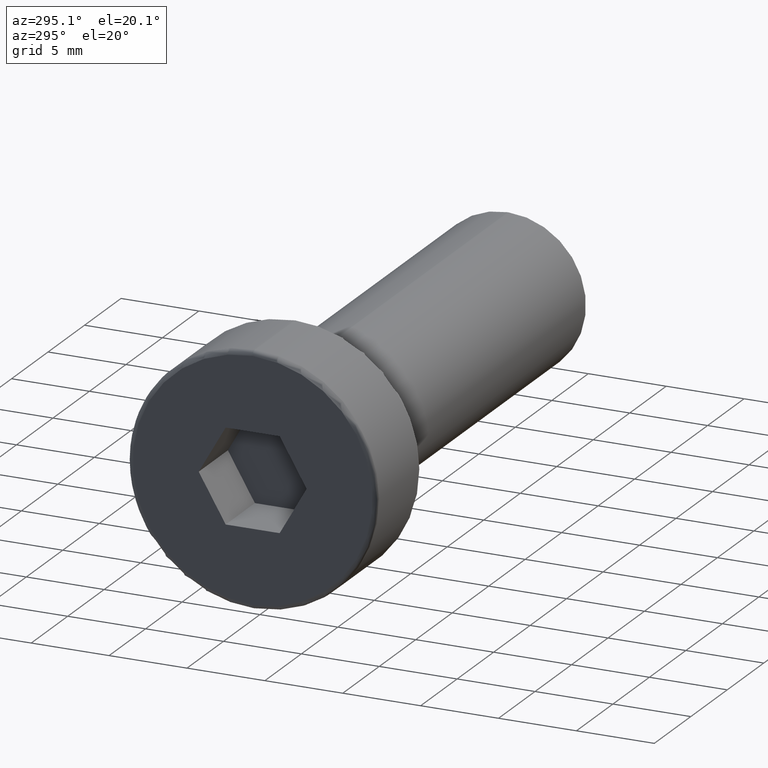
[diagram: clean part render]
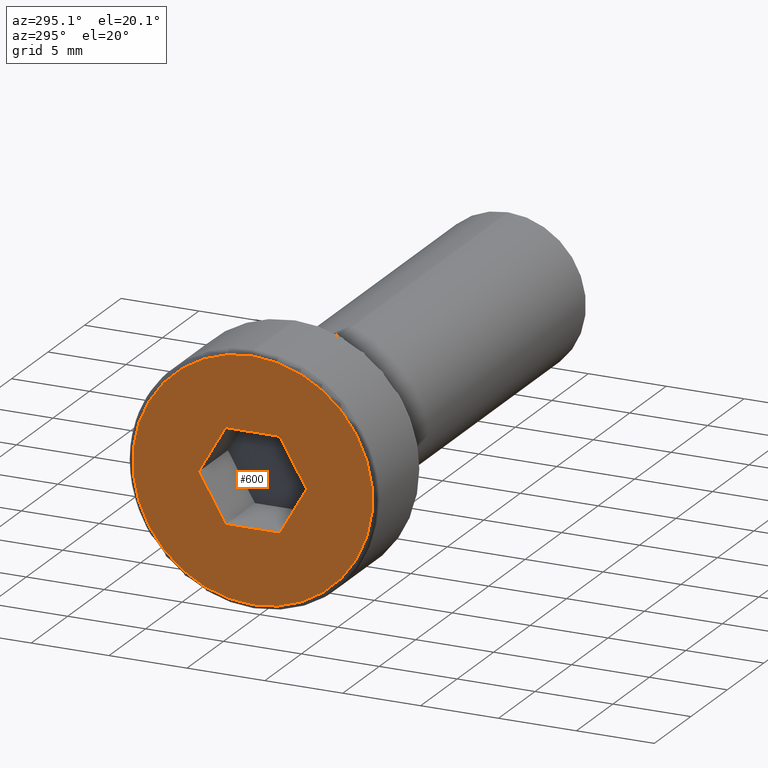
[diagram: same view with one face highlighted and labeled with its STEP entity id]
A machine part, auxiliary view. The second image highlights one B-rep face of the part: STEP entity #600.
In plain terms, the highlighted planar face has unit normal (1, 0, 0).
Its self-contained STEP definition (entity closure, byte-faithful):
#4 = CARTESIAN_POINT ( 'NONE',  ( -6.000000000000000000, 1.732050807568654900, 2.999999999999611400 ) ) ;
#10 = CARTESIAN_POINT ( 'NONE',  ( -6.000000000000000000, -1.732050807568653800, 2.999999999999613200 ) ) ;
#12 = DIRECTION ( 'NONE',  ( 0.0000000000000000000, 0.0000000000000000000, -1.000000000000000000 ) ) ;
#20 = ORIENTED_EDGE ( 'NONE', *, *, #692, .F. ) ;
#45 = EDGE_CURVE ( 'NONE', #332, #381, #476, .T. ) ;
#51 = DIRECTION ( 'NONE',  ( -0.0000000000000000000, -0.5000000000000008900, -0.8660254037844381500 ) ) ;
#61 = ORIENTED_EDGE ( 'NONE', *, *, #269, .F. ) ;
#62 = CARTESIAN_POINT ( 'NONE',  ( -6.000000000000000000, -3.464101615137309900, 0.0000000000000000000 ) ) ;
#75 = VERTEX_POINT ( 'NONE', #304 ) ;
#111 = VERTEX_POINT ( 'NONE', #564 ) ;
#142 = ORIENTED_EDGE ( 'NONE', *, *, #437, .T. ) ;
#151 = EDGE_LOOP ( 'NONE', ( #591, #142 ) ) ;
#157 = VECTOR ( 'NONE', #188, 1000.000000000000000 ) ;
#164 = FACE_BOUND ( 'NONE', #611, .T. ) ;
#188 = DIRECTION ( 'NONE',  ( -0.0000000000000000000, -1.000000000000000000, -0.0000000000000000000 ) ) ;
#201 = CARTESIAN_POINT ( 'NONE',  ( -6.000000000000000000, 0.0000000000000000000, 0.0000000000000000000 ) ) ;
#218 = PLANE ( 'NONE',  #382 ) ;
#222 = VERTEX_POINT ( 'NONE', #484 ) ;
#226 = CARTESIAN_POINT ( 'NONE',  ( -6.000000000000000000, -3.464101615137309900, 0.0000000000000000000 ) ) ;
#243 = CARTESIAN_POINT ( 'NONE',  ( -6.000000000000000000, -1.732050807568655800, -2.999999999999614100 ) ) ;
#263 = DIRECTION ( 'NONE',  ( 0.0000000000000000000, 0.0000000000000000000, -1.000000000000000000 ) ) ;
#264 = CIRCLE ( 'NONE', #399, 7.700000000000000200 ) ;
#269 = EDGE_CURVE ( 'NONE', #339, #412, #674, .T. ) ;
#283 = EDGE_CURVE ( 'NONE', #381, #75, #657, .T. ) ;
#287 = DIRECTION ( 'NONE',  ( -0.0000000000000000000, -0.4999999999999999400, 0.8660254037844387100 ) ) ;
#304 = CARTESIAN_POINT ( 'NONE',  ( -6.000000000000000000, -1.732050807568655800, -2.999999999999614100 ) ) ;
#314 = ORIENTED_EDGE ( 'NONE', *, *, #45, .F. ) ;
#316 = AXIS2_PLACEMENT_3D ( 'NONE', #201, #644, #263 ) ;
#317 = CARTESIAN_POINT ( 'NONE',  ( -6.000000000000000000, 1.732050807568653600, -2.999999999999614100 ) ) ;
#332 = VERTEX_POINT ( 'NONE', #630 ) ;
#339 = VERTEX_POINT ( 'NONE', #62 ) ;
#345 = EDGE_CURVE ( 'NONE', #412, #778, #782, .T. ) ;
#352 = DIRECTION ( 'NONE',  ( -0.0000000000000000000, 0.5000000000000005600, -0.8660254037844382600 ) ) ;
#381 = VERTEX_POINT ( 'NONE', #317 ) ;
#382 = AXIS2_PLACEMENT_3D ( 'NONE', #390, #780, #401 ) ;
#383 = DIRECTION ( 'NONE',  ( -1.000000000000000000, -0.0000000000000000000, -0.0000000000000000000 ) ) ;
#390 = CARTESIAN_POINT ( 'NONE',  ( -6.000000000000000000, 0.0000000000000000000, 0.0000000000000000000 ) ) ;
#399 = AXIS2_PLACEMENT_3D ( 'NONE', #763, #383, #12 ) ;
#401 = DIRECTION ( 'NONE',  ( 0.0000000000000000000, 0.0000000000000000000, -1.000000000000000000 ) ) ;
#412 = VERTEX_POINT ( 'NONE', #10 ) ;
#417 = CARTESIAN_POINT ( 'NONE',  ( -6.000000000000000000, 3.464101615137311200, -1.734723475976807100E-015 ) ) ;
#433 = EDGE_CURVE ( 'NONE', #111, #222, #577, .T. ) ;
#437 = EDGE_CURVE ( 'NONE', #222, #111, #264, .T. ) ;
#444 = DIRECTION ( 'NONE',  ( -0.0000000000000000000, 1.000000000000000000, -5.007715329124508700E-016 ) ) ;
#469 = LINE ( 'NONE', #417, #785 ) ;
#476 = LINE ( 'NONE', #490, #791 ) ;
#481 = ORIENTED_EDGE ( 'NONE', *, *, #283, .F. ) ;
#484 = CARTESIAN_POINT ( 'NONE',  ( -6.000000000000000000, 9.613477373306721400E-016, 7.700000000000000200 ) ) ;
#490 = CARTESIAN_POINT ( 'NONE',  ( -6.000000000000000000, 1.732050807568653600, -2.999999999999614100 ) ) ;
#492 = DIRECTION ( 'NONE',  ( -0.0000000000000000000, 0.5000000000000004400, 0.8660254037844383700 ) ) ;
#495 = FACE_OUTER_BOUND ( 'NONE', #151, .T. ) ;
#508 = VECTOR ( 'NONE', #492, 1000.000000000000000 ) ;
#564 = CARTESIAN_POINT ( 'NONE',  ( -6.000000000000000000, 0.0000000000000000000, -7.700000000000000200 ) ) ;
#577 = CIRCLE ( 'NONE', #316, 7.700000000000000200 ) ;
#591 = ORIENTED_EDGE ( 'NONE', *, *, #433, .T. ) ;
#600 = ADVANCED_FACE ( 'NONE', ( #164, #495 ), #218, .F. ) ;
#611 = EDGE_LOOP ( 'NONE', ( #61, #20, #481, #314, #636, #716 ) ) ;
#615 = CARTESIAN_POINT ( 'NONE',  ( -6.000000000000000000, 1.732050807568654900, 2.999999999999611400 ) ) ;
#616 = CARTESIAN_POINT ( 'NONE',  ( -6.000000000000000000, -1.732050807568653800, 2.999999999999613200 ) ) ;
#617 = VECTOR ( 'NONE', #287, 999.9999999999998900 ) ;
#630 = CARTESIAN_POINT ( 'NONE',  ( -6.000000000000000000, 3.464101615137311200, -1.734723475976807100E-015 ) ) ;
#636 = ORIENTED_EDGE ( 'NONE', *, *, #749, .F. ) ;
#641 = VECTOR ( 'NONE', #444, 1000.000000000000000 ) ;
#644 = DIRECTION ( 'NONE',  ( -1.000000000000000000, -0.0000000000000000000, -0.0000000000000000000 ) ) ;
#657 = LINE ( 'NONE', #243, #157 ) ;
#674 = LINE ( 'NONE', #616, #508 ) ;
#692 = EDGE_CURVE ( 'NONE', #75, #339, #781, .T. ) ;
#716 = ORIENTED_EDGE ( 'NONE', *, *, #345, .F. ) ;
#749 = EDGE_CURVE ( 'NONE', #778, #332, #469, .T. ) ;
#763 = CARTESIAN_POINT ( 'NONE',  ( -6.000000000000000000, 0.0000000000000000000, 0.0000000000000000000 ) ) ;
#778 = VERTEX_POINT ( 'NONE', #615 ) ;
#780 = DIRECTION ( 'NONE',  ( 1.000000000000000000, 0.0000000000000000000, 0.0000000000000000000 ) ) ;
#781 = LINE ( 'NONE', #226, #617 ) ;
#782 = LINE ( 'NONE', #4, #641 ) ;
#785 = VECTOR ( 'NONE', #352, 1000.000000000000100 ) ;
#791 = VECTOR ( 'NONE', #51, 1000.000000000000000 ) ;